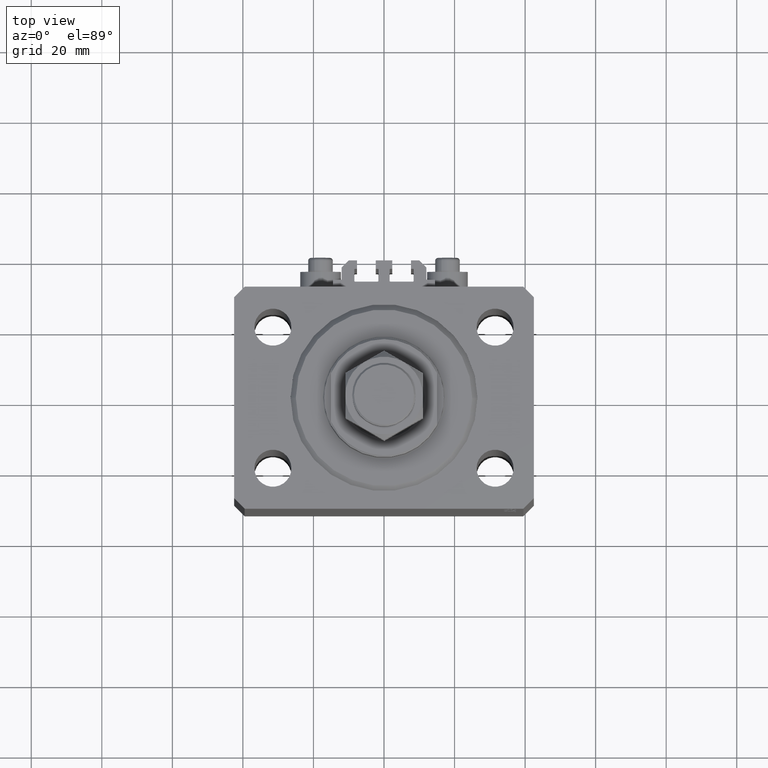
[diagram: clean part render]
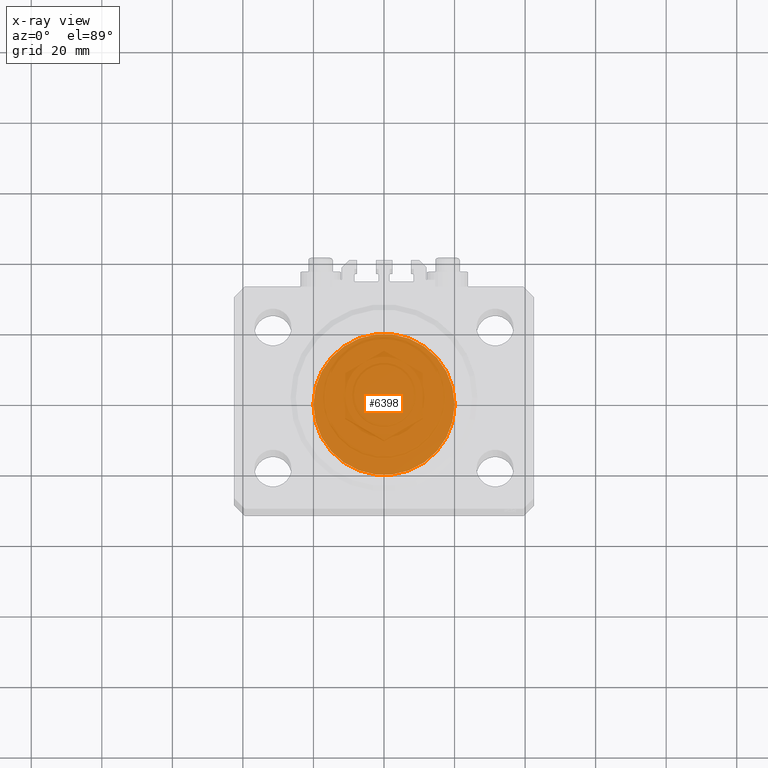
[diagram: x-ray — body ghosted, one internal face saturated and labeled with its STEP entity id]
A machine part, top view, then the same camera in x-ray: the body is ghosted and one INTERNAL B-rep face — a face not visible from any outside direction — is saturated and labeled: STEP entity #6398.
In plain terms, the highlighted planar face has unit normal (0, 0, 1).
Its self-contained STEP definition (entity closure, byte-faithful):
#353 = VERTEX_POINT ( 'NONE', #3292 ) ;
#376 = DIRECTION ( 'NONE',  ( 1.000000000000000000, 0.000000000000000000, 0.000000000000000000 ) ) ;
#1564 = EDGE_CURVE ( 'NONE', #32994, #353, #15871, .T. ) ;
#3292 = CARTESIAN_POINT ( 'NONE',  ( 20.00000000000000000, 2.449293598294706513E-15, 0.000000000000000000 ) ) ;
#3587 = CARTESIAN_POINT ( 'NONE',  ( 0.000000000000000000, 0.000000000000000000, 0.000000000000000000 ) ) ;
#5549 = EDGE_LOOP ( 'NONE', ( #26112, #19309 ) ) ;
#6398 = ADVANCED_FACE ( 'NONE', ( #48318 ), #14114, .F. ) ;
#7120 = AXIS2_PLACEMENT_3D ( 'NONE', #34480, #37948, #26789 ) ;
#14114 = PLANE ( 'NONE',  #21507 ) ;
#15871 = CIRCLE ( 'NONE', #7120, 20.00000000000000000 ) ;
#15958 = DIRECTION ( 'NONE',  ( 0.000000000000000000, 0.000000000000000000, 1.000000000000000000 ) ) ;
#19309 = ORIENTED_EDGE ( 'NONE', *, *, #40688, .F. ) ;
#21507 = AXIS2_PLACEMENT_3D ( 'NONE', #29987, #30232, #22029 ) ;
#22029 = DIRECTION ( 'NONE',  ( 1.000000000000000000, 0.000000000000000000, -0.000000000000000000 ) ) ;
#25755 = AXIS2_PLACEMENT_3D ( 'NONE', #3587, #15958, #376 ) ;
#26112 = ORIENTED_EDGE ( 'NONE', *, *, #1564, .F. ) ;
#26789 = DIRECTION ( 'NONE',  ( 1.000000000000000000, 0.000000000000000000, 0.000000000000000000 ) ) ;
#29987 = CARTESIAN_POINT ( 'NONE',  ( 0.000000000000000000, 0.000000000000000000, 0.000000000000000000 ) ) ;
#30232 = DIRECTION ( 'NONE',  ( 0.000000000000000000, 0.000000000000000000, 1.000000000000000000 ) ) ;
#32994 = VERTEX_POINT ( 'NONE', #48475 ) ;
#34480 = CARTESIAN_POINT ( 'NONE',  ( 0.000000000000000000, 0.000000000000000000, 0.000000000000000000 ) ) ;
#37948 = DIRECTION ( 'NONE',  ( 0.000000000000000000, 0.000000000000000000, 1.000000000000000000 ) ) ;
#40688 = EDGE_CURVE ( 'NONE', #353, #32994, #47123, .T. ) ;
#47123 = CIRCLE ( 'NONE', #25755, 20.00000000000000000 ) ;
#48318 = FACE_OUTER_BOUND ( 'NONE', #5549, .T. ) ;
#48475 = CARTESIAN_POINT ( 'NONE',  ( -20.00000000000000000, 0.000000000000000000, 0.000000000000000000 ) ) ;